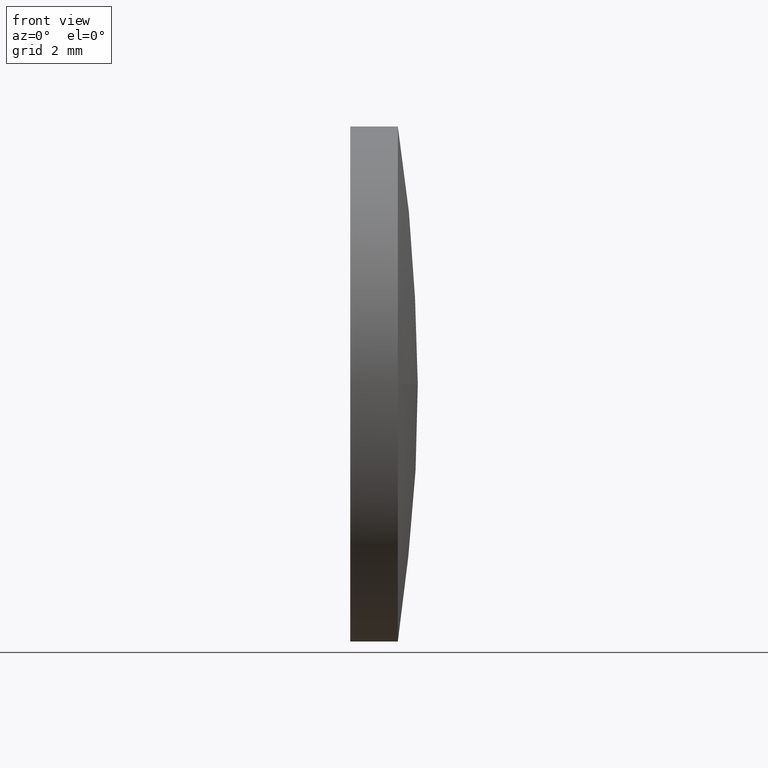
[diagram: clean part render]
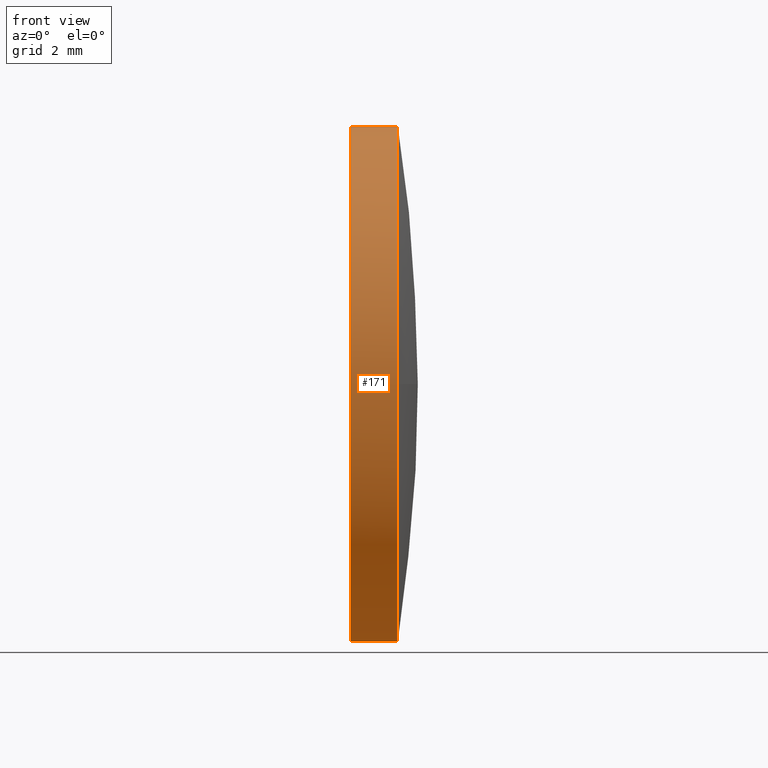
[diagram: same view with one face highlighted and labeled with its STEP entity id]
A machine part, front view. The second image highlights one B-rep face of the part: STEP entity #171.
In plain terms, the highlighted cylindrical surface (partial cylindrical patch) has radius 8 mm, axis along (-1, -0, -0).
Its self-contained STEP definition (entity closure, byte-faithful):
#4 = CARTESIAN_POINT ( 'NONE',  ( 667.5536510589195100, 92.48951843981319600, -8.000000000000007100 ) ) ;
#6 = EDGE_CURVE ( 'NONE', #140, #27, #28, .T. ) ;
#14 = ORIENTED_EDGE ( 'NONE', *, *, #6, .F. ) ;
#27 = VERTEX_POINT ( 'NONE', #149 ) ;
#28 = CIRCLE ( 'NONE', #43, 8.000000000000007100 ) ;
#29 = CARTESIAN_POINT ( 'NONE',  ( 667.5536510589195100, 84.48951843981356500, 0.0000000000000000000 ) ) ;
#30 = CARTESIAN_POINT ( 'NONE',  ( 666.0736510589196100, 92.48951843981319600, 0.0000000000000000000 ) ) ;
#32 = VERTEX_POINT ( 'NONE', #29 ) ;
#33 = DIRECTION ( 'NONE',  ( -1.000000000000000000, -0.0000000000000000000, -0.0000000000000000000 ) ) ;
#38 = AXIS2_PLACEMENT_3D ( 'NONE', #167, #105, #85 ) ;
#43 = AXIS2_PLACEMENT_3D ( 'NONE', #30, #33, #126 ) ;
#48 = DIRECTION ( 'NONE',  ( -1.000000000000000000, -0.0000000000000000000, -0.0000000000000000000 ) ) ;
#49 = CARTESIAN_POINT ( 'NONE',  ( 664.1508343540738200, 92.48951843981319600, 0.0000000000000000000 ) ) ;
#50 = CARTESIAN_POINT ( 'NONE',  ( 667.5536510589195100, 92.48951843981319600, 0.0000000000000000000 ) ) ;
#56 = VERTEX_POINT ( 'NONE', #4 ) ;
#58 = ORIENTED_EDGE ( 'NONE', *, *, #154, .T. ) ;
#64 = DIRECTION ( 'NONE',  ( -1.000000000000000000, -0.0000000000000000000, -0.0000000000000000000 ) ) ;
#71 = EDGE_LOOP ( 'NONE', ( #78, #58, #94, #80, #14 ) ) ;
#72 = CIRCLE ( 'NONE', #38, 8.000000000000007100 ) ;
#76 = CARTESIAN_POINT ( 'NONE',  ( 667.5536510589195100, 92.48951843981319600, 8.000000000000007100 ) ) ;
#77 = FACE_OUTER_BOUND ( 'NONE', #71, .T. ) ;
#78 = ORIENTED_EDGE ( 'NONE', *, *, #162, .F. ) ;
#79 = LINE ( 'NONE', #134, #185 ) ;
#80 = ORIENTED_EDGE ( 'NONE', *, *, #84, .T. ) ;
#82 = AXIS2_PLACEMENT_3D ( 'NONE', #49, #117, #132 ) ;
#83 = VERTEX_POINT ( 'NONE', #76 ) ;
#84 = EDGE_CURVE ( 'NONE', #83, #27, #112, .T. ) ;
#85 = DIRECTION ( 'NONE',  ( 0.0000000000000000000, 0.0000000000000000000, 1.000000000000000000 ) ) ;
#90 = DIRECTION ( 'NONE',  ( 0.0000000000000000000, 0.0000000000000000000, 1.000000000000000000 ) ) ;
#94 = ORIENTED_EDGE ( 'NONE', *, *, #172, .T. ) ;
#100 = CIRCLE ( 'NONE', #130, 8.000000000000007100 ) ;
#105 = DIRECTION ( 'NONE',  ( -1.000000000000000000, -0.0000000000000000000, -0.0000000000000000000 ) ) ;
#112 = LINE ( 'NONE', #165, #142 ) ;
#117 = DIRECTION ( 'NONE',  ( -1.000000000000000000, -0.0000000000000000000, -0.0000000000000000000 ) ) ;
#126 = DIRECTION ( 'NONE',  ( 0.0000000000000000000, 0.0000000000000000000, 1.000000000000000000 ) ) ;
#130 = AXIS2_PLACEMENT_3D ( 'NONE', #50, #155, #90 ) ;
#132 = DIRECTION ( 'NONE',  ( 0.0000000000000000000, 0.0000000000000000000, 1.000000000000000000 ) ) ;
#134 = CARTESIAN_POINT ( 'NONE',  ( 664.1508343540738200, 92.48951843981319600, -8.000000000000007100 ) ) ;
#135 = CARTESIAN_POINT ( 'NONE',  ( 666.0736510589196100, 92.48951843981319600, -8.000000000000007100 ) ) ;
#140 = VERTEX_POINT ( 'NONE', #135 ) ;
#142 = VECTOR ( 'NONE', #64, 1000.000000000000000 ) ;
#149 = CARTESIAN_POINT ( 'NONE',  ( 666.0736510589196100, 92.48951843981319600, 8.000000000000007100 ) ) ;
#154 = EDGE_CURVE ( 'NONE', #56, #32, #72, .T. ) ;
#155 = DIRECTION ( 'NONE',  ( -1.000000000000000000, -0.0000000000000000000, -0.0000000000000000000 ) ) ;
#158 = CYLINDRICAL_SURFACE ( 'NONE', #82, 8.000000000000007100 ) ;
#162 = EDGE_CURVE ( 'NONE', #56, #140, #79, .T. ) ;
#165 = CARTESIAN_POINT ( 'NONE',  ( 664.1508343540738200, 92.48951843981319600, 8.000000000000007100 ) ) ;
#167 = CARTESIAN_POINT ( 'NONE',  ( 667.5536510589195100, 92.48951843981319600, 0.0000000000000000000 ) ) ;
#171 = ADVANCED_FACE ( 'NONE', ( #77 ), #158, .T. ) ;
#172 = EDGE_CURVE ( 'NONE', #32, #83, #100, .T. ) ;
#185 = VECTOR ( 'NONE', #48, 1000.000000000000000 ) ;